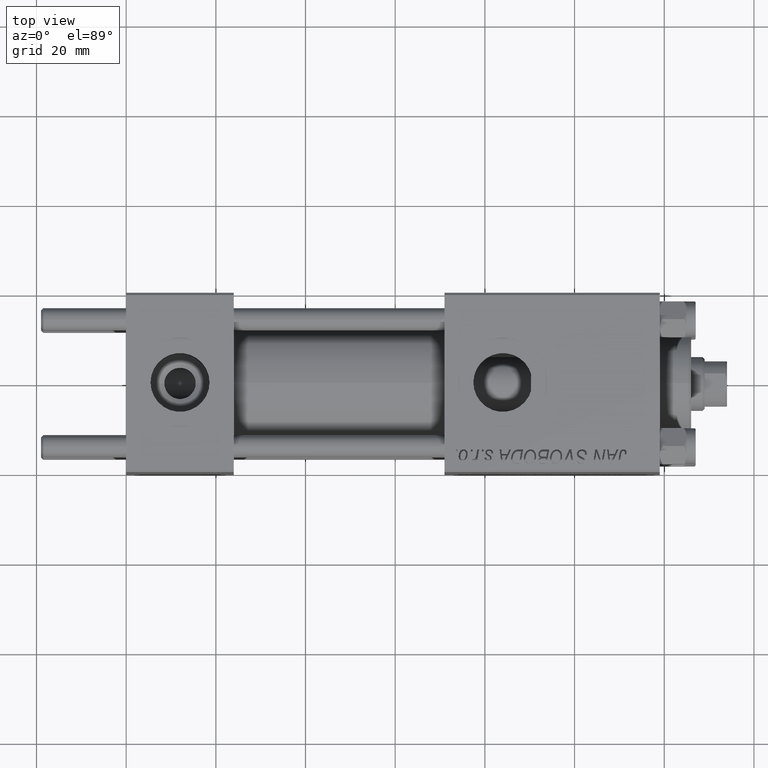
[diagram: clean part render]
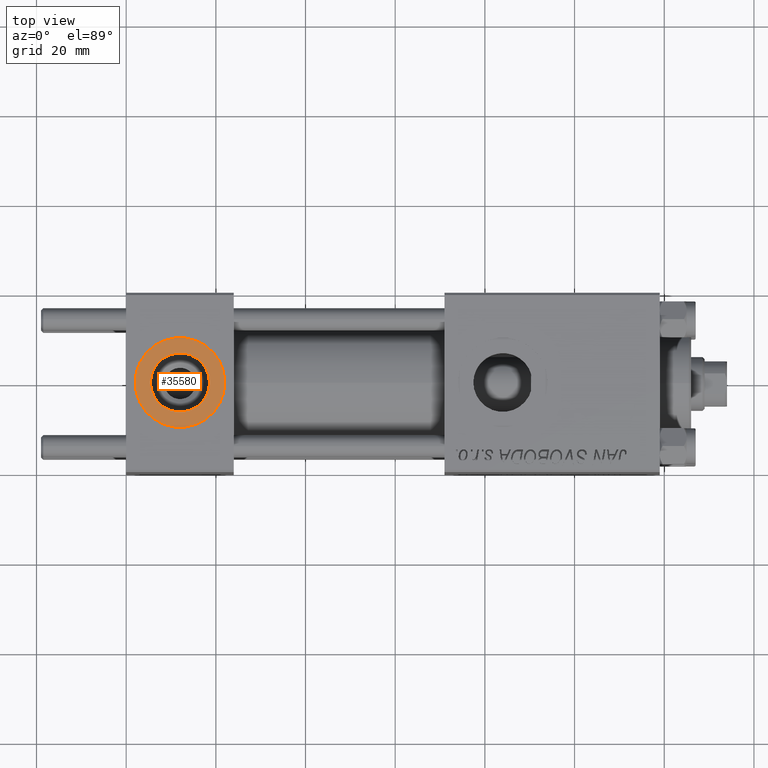
[diagram: same view with one face highlighted and labeled with its STEP entity id]
A machine part, top view. The second image highlights one B-rep face of the part: STEP entity #35580.
In plain terms, the highlighted planar face has unit normal (0, 0, 1).
Its self-contained STEP definition (entity closure, byte-faithful):
#976 = CARTESIAN_POINT ( 'NONE',  ( 2.000000000000003553, 1.224646799147354440E-15, 19.79999999999999716 ) ) ;
#1096 = DIRECTION ( 'NONE',  ( 0.000000000000000000, 0.000000000000000000, 1.000000000000000000 ) ) ;
#1136 = DIRECTION ( 'NONE',  ( 1.000000000000000000, 0.000000000000000000, 0.000000000000000000 ) ) ;
#4738 = CIRCLE ( 'NONE', #24809, 6.579999999999999183 ) ;
#5642 = ORIENTED_EDGE ( 'NONE', *, *, #16974, .F. ) ;
#8243 = DIRECTION ( 'NONE',  ( 1.000000000000000000, 0.000000000000000000, 0.000000000000000000 ) ) ;
#8661 = DIRECTION ( 'NONE',  ( 1.000000000000000000, 0.000000000000000000, 0.000000000000000000 ) ) ;
#9310 = PLANE ( 'NONE',  #21223 ) ;
#9605 = EDGE_LOOP ( 'NONE', ( #15241, #25973 ) ) ;
#10538 = AXIS2_PLACEMENT_3D ( 'NONE', #31655, #47011, #8243 ) ;
#14683 = CARTESIAN_POINT ( 'NONE',  ( 5.420000000000000817, 8.058175938389596335E-16, 19.79999999999999716 ) ) ;
#15241 = ORIENTED_EDGE ( 'NONE', *, *, #30038, .T. ) ;
#16206 = CARTESIAN_POINT ( 'NONE',  ( 12.00000000000000000, 1.540743955509788682E-30, 19.79999999999999716 ) ) ;
#16729 = CARTESIAN_POINT ( 'NONE',  ( 12.00000000000000000, 1.540743955509788682E-30, 19.79999999999999716 ) ) ;
#16974 = EDGE_CURVE ( 'NONE', #41577, #31209, #4738, .T. ) ;
#17569 = DIRECTION ( 'NONE',  ( 1.000000000000000000, 0.000000000000000000, 0.000000000000000000 ) ) ;
#19571 = EDGE_CURVE ( 'NONE', #31209, #41577, #43396, .T. ) ;
#20634 = FACE_OUTER_BOUND ( 'NONE', #9605, .T. ) ;
#21223 = AXIS2_PLACEMENT_3D ( 'NONE', #39297, #24665, #27700 ) ;
#21345 = DIRECTION ( 'NONE',  ( 0.000000000000000000, 0.000000000000000000, 1.000000000000000000 ) ) ;
#23347 = EDGE_CURVE ( 'NONE', #28369, #39699, #28252, .T. ) ;
#24665 = DIRECTION ( 'NONE',  ( 0.000000000000000000, 0.000000000000000000, 1.000000000000000000 ) ) ;
#24809 = AXIS2_PLACEMENT_3D ( 'NONE', #16206, #1096, #8661 ) ;
#25973 = ORIENTED_EDGE ( 'NONE', *, *, #23347, .T. ) ;
#27700 = DIRECTION ( 'NONE',  ( 1.000000000000000000, 0.000000000000000000, -0.000000000000000000 ) ) ;
#28069 = DIRECTION ( 'NONE',  ( 0.000000000000000000, 0.000000000000000000, 1.000000000000000000 ) ) ;
#28252 = CIRCLE ( 'NONE', #10538, 9.999999999999998224 ) ;
#28369 = VERTEX_POINT ( 'NONE', #976 ) ;
#29450 = CARTESIAN_POINT ( 'NONE',  ( 22.00000000000000000, 1.540743955509788682E-30, 19.79999999999999716 ) ) ;
#29938 = CIRCLE ( 'NONE', #37993, 9.999999999999998224 ) ;
#30038 = EDGE_CURVE ( 'NONE', #39699, #28369, #29938, .T. ) ;
#31209 = VERTEX_POINT ( 'NONE', #14683 ) ;
#31655 = CARTESIAN_POINT ( 'NONE',  ( 12.00000000000000000, 1.540743955509788682E-30, 19.79999999999999716 ) ) ;
#32692 = CARTESIAN_POINT ( 'NONE',  ( 12.00000000000000000, 1.540743955509788682E-30, 19.79999999999999716 ) ) ;
#34051 = EDGE_LOOP ( 'NONE', ( #5642, #44568 ) ) ;
#35580 = ADVANCED_FACE ( 'NONE', ( #40275, #20634 ), #9310, .T. ) ;
#37993 = AXIS2_PLACEMENT_3D ( 'NONE', #32692, #21345, #17569 ) ;
#39297 = CARTESIAN_POINT ( 'NONE',  ( 12.00000000000000000, 1.540743955509788682E-30, 19.79999999999999716 ) ) ;
#39699 = VERTEX_POINT ( 'NONE', #29450 ) ;
#40275 = FACE_BOUND ( 'NONE', #34051, .T. ) ;
#41577 = VERTEX_POINT ( 'NONE', #48921 ) ;
#43396 = CIRCLE ( 'NONE', #45804, 6.579999999999999183 ) ;
#44568 = ORIENTED_EDGE ( 'NONE', *, *, #19571, .F. ) ;
#45804 = AXIS2_PLACEMENT_3D ( 'NONE', #16729, #28069, #1136 ) ;
#47011 = DIRECTION ( 'NONE',  ( 0.000000000000000000, 0.000000000000000000, 1.000000000000000000 ) ) ;
#48921 = CARTESIAN_POINT ( 'NONE',  ( 18.57999999999999829, 1.540743955509788682E-30, 19.79999999999999716 ) ) ;